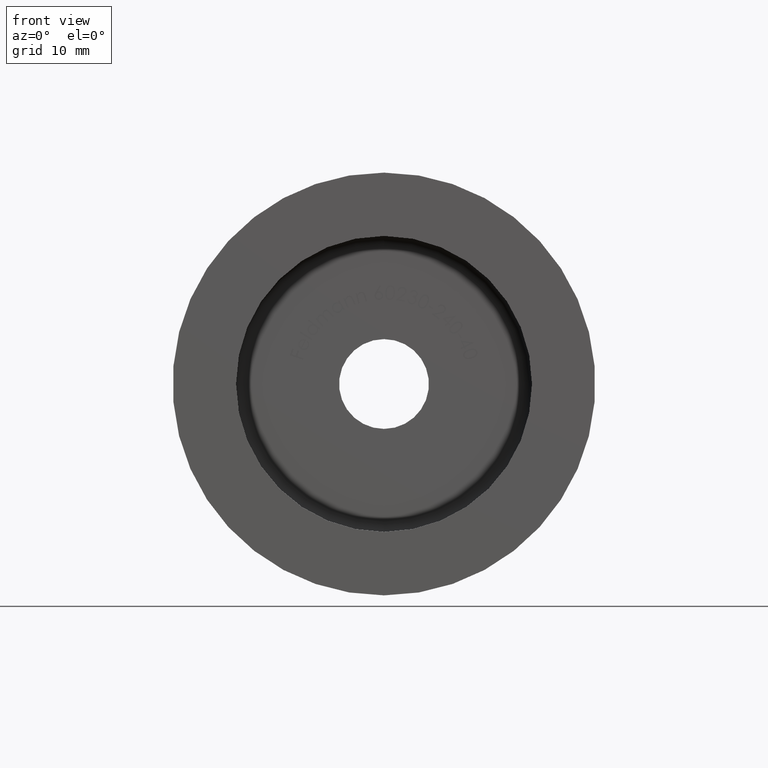
[diagram: clean part render]
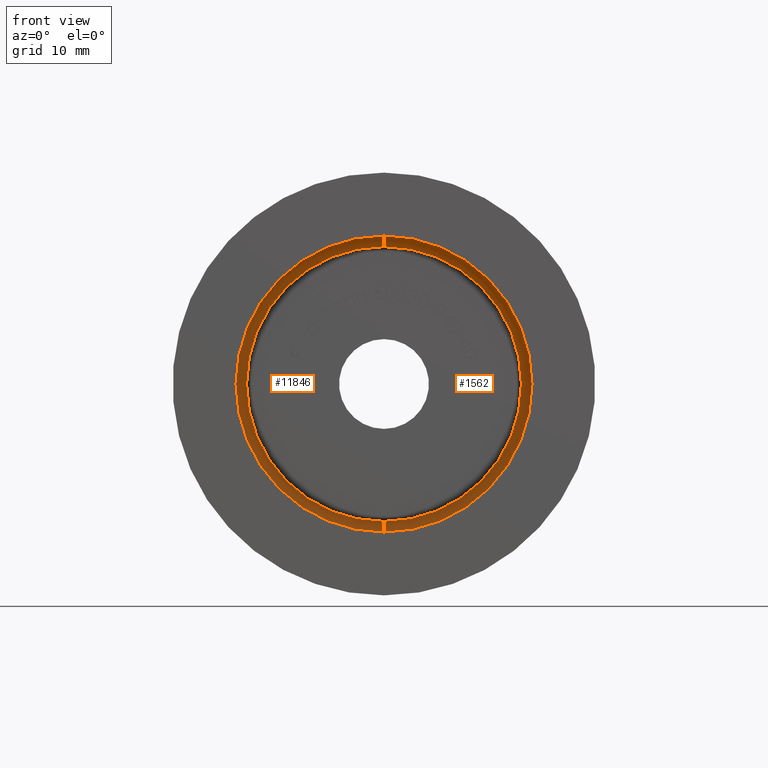
[diagram: same view with one multi-face feature highlighted, each face labeled with its STEP entity id]
A machine part, front view. The highlighted faces form ONE feature: a constant-radius fillet chain: 2 tangent blend faces with common blend radius 1 mm. The faces share edges in the B-rep.
Their STEP definitions:
[1] entity #11846 (Torus):
#231 = AXIS2_PLACEMENT_3D ( 'NONE', #7621, #11147, #13580 ) ;
#571 = CARTESIAN_POINT ( 'NONE',  ( 1.592040838891559293E-15, 34.00000000000000000, -13.00000000000000178 ) ) ;
#1027 = CIRCLE ( 'NONE', #231, 14.00000000000000000 ) ;
#1401 = CARTESIAN_POINT ( 'NONE',  ( 0.000000000000000000, 35.00000000000000000, 0.000000000000000000 ) ) ;
#1613 = ORIENTED_EDGE ( 'NONE', *, *, #5270, .F. ) ;
#1768 = CARTESIAN_POINT ( 'NONE',  ( 1.714505518806294638E-15, 34.00000000000000000, 14.00000000000000000 ) ) ;
#2842 = ORIENTED_EDGE ( 'NONE', *, *, #12229, .F. ) ;
#2896 = ORIENTED_EDGE ( 'NONE', *, *, #13379, .T. ) ;
#3246 = TOROIDAL_SURFACE ( 'NONE', #12486, 13.00000000000000178, 1.000000000000000000 ) ;
#4170 = CIRCLE ( 'NONE', #6303, 1.000000000000000888 ) ;
#4687 = VERTEX_POINT ( 'NONE', #10062 ) ;
#5270 = EDGE_CURVE ( 'NONE', #13414, #4687, #13798, .T. ) ;
#5371 = DIRECTION ( 'NONE',  ( 0.000000000000000000, 0.000000000000000000, 1.000000000000000000 ) ) ;
#5580 = EDGE_LOOP ( 'NONE', ( #2842, #2896, #13973, #1613 ) ) ;
#6303 = AXIS2_PLACEMENT_3D ( 'NONE', #571, #8875, #6735 ) ;
#6624 = CARTESIAN_POINT ( 'NONE',  ( 0.000000000000000000, 34.00000000000000000, 13.00000000000000178 ) ) ;
#6671 = DIRECTION ( 'NONE',  ( -1.000000000000000000, 0.000000000000000000, 0.000000000000000000 ) ) ;
#6735 = DIRECTION ( 'NONE',  ( 1.224646799147351482E-16, 0.000000000000000000, -1.000000000000000000 ) ) ;
#6845 = AXIS2_PLACEMENT_3D ( 'NONE', #6624, #6671, #7926 ) ;
#6898 = VERTEX_POINT ( 'NONE', #7979 ) ;
#7123 = CARTESIAN_POINT ( 'NONE',  ( 0.000000000000000000, 34.00000000000000000, -14.00000000000000000 ) ) ;
#7621 = CARTESIAN_POINT ( 'NONE',  ( 0.000000000000000000, 34.00000000000000000, 0.000000000000000000 ) ) ;
#7746 = CIRCLE ( 'NONE', #10956, 13.00000000000000178 ) ;
#7926 = DIRECTION ( 'NONE',  ( 0.000000000000000000, 0.000000000000000000, 1.000000000000000000 ) ) ;
#7979 = CARTESIAN_POINT ( 'NONE',  ( 1.653273178848927064E-15, 35.00000000000000000, -13.00000000000000178 ) ) ;
#8875 = DIRECTION ( 'NONE',  ( 1.000000000000000000, 0.000000000000000000, 1.224646799147353207E-16 ) ) ;
#9513 = EDGE_CURVE ( 'NONE', #4687, #6898, #7746, .T. ) ;
#9948 = FACE_OUTER_BOUND ( 'NONE', #5580, .T. ) ;
#10062 = CARTESIAN_POINT ( 'NONE',  ( 0.000000000000000000, 35.00000000000000000, 13.00000000000000178 ) ) ;
#10631 = VERTEX_POINT ( 'NONE', #7123 ) ;
#10956 = AXIS2_PLACEMENT_3D ( 'NONE', #1401, #13329, #11885 ) ;
#11147 = DIRECTION ( 'NONE',  ( -0.000000000000000000, 1.000000000000000000, -0.000000000000000000 ) ) ;
#11846 = ADVANCED_FACE ( 'NONE', ( #9948 ), #3246, .F. ) ;
#11885 = DIRECTION ( 'NONE',  ( 0.000000000000000000, 0.000000000000000000, 1.000000000000000000 ) ) ;
#12229 = EDGE_CURVE ( 'NONE', #10631, #13414, #1027, .T. ) ;
#12468 = DIRECTION ( 'NONE',  ( -0.000000000000000000, 1.000000000000000000, -0.000000000000000000 ) ) ;
#12486 = AXIS2_PLACEMENT_3D ( 'NONE', #14803, #12468, #5371 ) ;
#13329 = DIRECTION ( 'NONE',  ( 0.000000000000000000, -1.000000000000000000, 0.000000000000000000 ) ) ;
#13379 = EDGE_CURVE ( 'NONE', #10631, #6898, #4170, .T. ) ;
#13414 = VERTEX_POINT ( 'NONE', #1768 ) ;
#13580 = DIRECTION ( 'NONE',  ( 0.000000000000000000, 0.000000000000000000, 1.000000000000000000 ) ) ;
#13798 = CIRCLE ( 'NONE', #6845, 1.000000000000000888 ) ;
#13973 = ORIENTED_EDGE ( 'NONE', *, *, #9513, .F. ) ;
#14803 = CARTESIAN_POINT ( 'NONE',  ( 0.000000000000000000, 34.00000000000000000, 0.000000000000000000 ) ) ;
[2] entity #1562 (Torus):
#571 = CARTESIAN_POINT ( 'NONE',  ( 1.592040838891559293E-15, 34.00000000000000000, -13.00000000000000178 ) ) ;
#927 = ORIENTED_EDGE ( 'NONE', *, *, #12752, .F. ) ;
#1082 = DIRECTION ( 'NONE',  ( 0.000000000000000000, -1.000000000000000000, 0.000000000000000000 ) ) ;
#1562 = ADVANCED_FACE ( 'NONE', ( #1743 ), #10836, .F. ) ;
#1743 = FACE_OUTER_BOUND ( 'NONE', #4445, .T. ) ;
#1768 = CARTESIAN_POINT ( 'NONE',  ( 1.714505518806294638E-15, 34.00000000000000000, 14.00000000000000000 ) ) ;
#1849 = DIRECTION ( 'NONE',  ( -0.000000000000000000, 1.000000000000000000, -0.000000000000000000 ) ) ;
#2029 = DIRECTION ( 'NONE',  ( 0.000000000000000000, 0.000000000000000000, 1.000000000000000000 ) ) ;
#2343 = ORIENTED_EDGE ( 'NONE', *, *, #13379, .F. ) ;
#3094 = AXIS2_PLACEMENT_3D ( 'NONE', #8245, #1082, #15312 ) ;
#4170 = CIRCLE ( 'NONE', #6303, 1.000000000000000888 ) ;
#4303 = DIRECTION ( 'NONE',  ( -0.000000000000000000, 1.000000000000000000, -0.000000000000000000 ) ) ;
#4445 = EDGE_LOOP ( 'NONE', ( #2343, #927, #14409, #4877 ) ) ;
#4687 = VERTEX_POINT ( 'NONE', #10062 ) ;
#4877 = ORIENTED_EDGE ( 'NONE', *, *, #12067, .F. ) ;
#4982 = AXIS2_PLACEMENT_3D ( 'NONE', #14809, #1849, #8860 ) ;
#5270 = EDGE_CURVE ( 'NONE', #13414, #4687, #13798, .T. ) ;
#6303 = AXIS2_PLACEMENT_3D ( 'NONE', #571, #8875, #6735 ) ;
#6590 = AXIS2_PLACEMENT_3D ( 'NONE', #11445, #4303, #2029 ) ;
#6624 = CARTESIAN_POINT ( 'NONE',  ( 0.000000000000000000, 34.00000000000000000, 13.00000000000000178 ) ) ;
#6671 = DIRECTION ( 'NONE',  ( -1.000000000000000000, 0.000000000000000000, 0.000000000000000000 ) ) ;
#6735 = DIRECTION ( 'NONE',  ( 1.224646799147351482E-16, 0.000000000000000000, -1.000000000000000000 ) ) ;
#6845 = AXIS2_PLACEMENT_3D ( 'NONE', #6624, #6671, #7926 ) ;
#6898 = VERTEX_POINT ( 'NONE', #7979 ) ;
#7123 = CARTESIAN_POINT ( 'NONE',  ( 0.000000000000000000, 34.00000000000000000, -14.00000000000000000 ) ) ;
#7168 = CIRCLE ( 'NONE', #3094, 13.00000000000000178 ) ;
#7926 = DIRECTION ( 'NONE',  ( 0.000000000000000000, 0.000000000000000000, 1.000000000000000000 ) ) ;
#7979 = CARTESIAN_POINT ( 'NONE',  ( 1.653273178848927064E-15, 35.00000000000000000, -13.00000000000000178 ) ) ;
#8245 = CARTESIAN_POINT ( 'NONE',  ( 0.000000000000000000, 35.00000000000000000, 0.000000000000000000 ) ) ;
#8860 = DIRECTION ( 'NONE',  ( 0.000000000000000000, 0.000000000000000000, 1.000000000000000000 ) ) ;
#8875 = DIRECTION ( 'NONE',  ( 1.000000000000000000, 0.000000000000000000, 1.224646799147353207E-16 ) ) ;
#9933 = CIRCLE ( 'NONE', #6590, 14.00000000000000000 ) ;
#10062 = CARTESIAN_POINT ( 'NONE',  ( 0.000000000000000000, 35.00000000000000000, 13.00000000000000178 ) ) ;
#10631 = VERTEX_POINT ( 'NONE', #7123 ) ;
#10836 = TOROIDAL_SURFACE ( 'NONE', #4982, 13.00000000000000178, 1.000000000000000000 ) ;
#11445 = CARTESIAN_POINT ( 'NONE',  ( 0.000000000000000000, 34.00000000000000000, 0.000000000000000000 ) ) ;
#12067 = EDGE_CURVE ( 'NONE', #6898, #4687, #7168, .T. ) ;
#12752 = EDGE_CURVE ( 'NONE', #13414, #10631, #9933, .T. ) ;
#13379 = EDGE_CURVE ( 'NONE', #10631, #6898, #4170, .T. ) ;
#13414 = VERTEX_POINT ( 'NONE', #1768 ) ;
#13798 = CIRCLE ( 'NONE', #6845, 1.000000000000000888 ) ;
#14409 = ORIENTED_EDGE ( 'NONE', *, *, #5270, .T. ) ;
#14809 = CARTESIAN_POINT ( 'NONE',  ( 0.000000000000000000, 34.00000000000000000, 0.000000000000000000 ) ) ;
#15312 = DIRECTION ( 'NONE',  ( 0.000000000000000000, 0.000000000000000000, 1.000000000000000000 ) ) ;